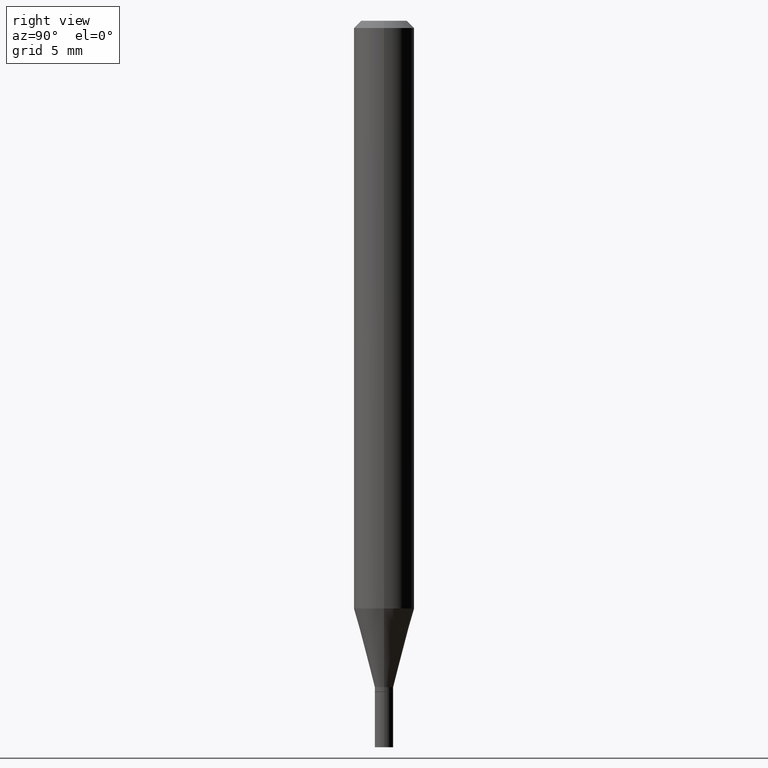
[diagram: clean part render]
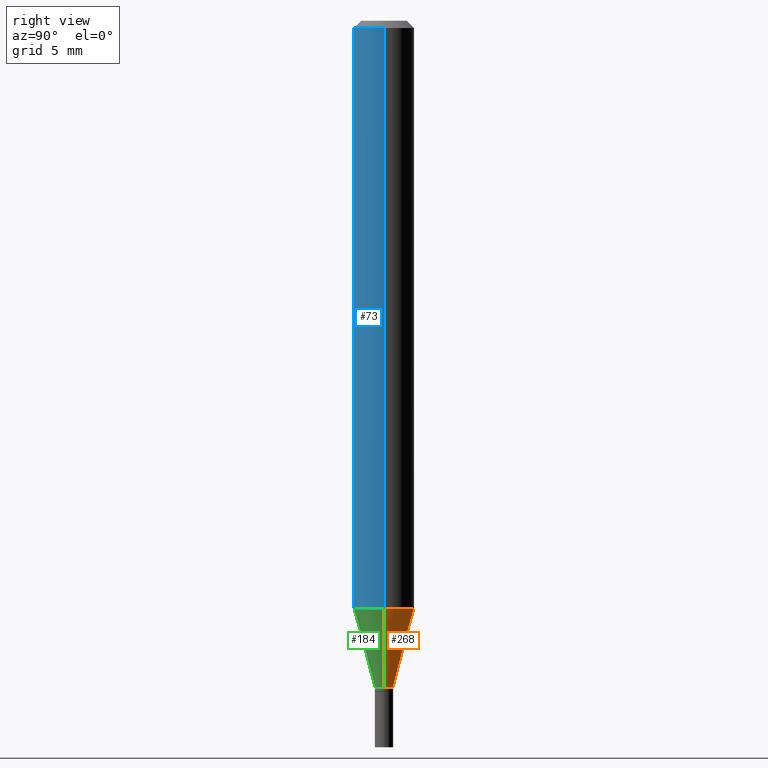
[diagram: same view with three faces highlighted in distinct colors, each labeled with its STEP entity id]
A machine part, right view with three faces highlighted in distinct colors.
Their STEP definitions:

[orange] entity #268 — the highlighted conical surface has half-angle 15 deg.
#3 = VECTOR ( 'NONE', #204, 39.37007874015748854 ) ;
#15 = EDGE_CURVE ( 'NONE', #52, #159, #207, .T. ) ;
#18 = CARTESIAN_POINT ( 'NONE',  ( 0.01900000000000019382, -4.936954613124209308E-15, -1.376000000000000112 ) ) ;
#30 = VERTEX_POINT ( 'NONE', #452 ) ;
#45 = DIRECTION ( 'NONE',  ( 1.000000000000000000, -6.982962677686262766E-15, 0.000000000000000000 ) ) ;
#52 = VERTEX_POINT ( 'NONE', #18 ) ;
#82 = DIRECTION ( 'NONE',  ( 1.000000000000000000, -6.982962677686261977E-15, 0.000000000000000000 ) ) ;
#90 = CARTESIAN_POINT ( 'NONE',  ( 0.01900000000000019382, -4.936954613124209308E-15, -1.376000000000000112 ) ) ;
#92 = ORIENTED_EDGE ( 'NONE', *, *, #192, .T. ) ;
#98 = VECTOR ( 'NONE', #168, 39.37007874015748854 ) ;
#123 = DIRECTION ( 'NONE',  ( -2.445468806185136597E-29, 3.491481338843145583E-15, 1.000000000000000000 ) ) ;
#137 = ORIENTED_EDGE ( 'NONE', *, *, #187, .T. ) ;
#159 = VERTEX_POINT ( 'NONE', #235 ) ;
#168 = DIRECTION ( 'NONE',  ( -0.2588190451025212391, 5.211531920934549464E-15, 0.9659258262890679791 ) ) ;
#172 = CIRCLE ( 'NONE', #335, 0.06250000000000000000 ) ;
#187 = EDGE_CURVE ( 'NONE', #244, #30, #451, .T. ) ;
#192 = EDGE_CURVE ( 'NONE', #52, #244, #358, .T. ) ;
#202 = CONICAL_SURFACE ( 'NONE', #275, 0.01900000000000019382, 0.2617993877991499629 ) ;
#204 = DIRECTION ( 'NONE',  ( 0.2588190451025212391, 1.565188264969622362E-15, 0.9659258262890679791 ) ) ;
#207 = LINE ( 'NONE', #90, #3 ) ;
#235 = CARTESIAN_POINT ( 'NONE',  ( 0.06250000000000000000, -4.673891709468070691E-15, -1.213655789870754953 ) ) ;
#241 = ORIENTED_EDGE ( 'NONE', *, *, #325, .F. ) ;
#244 = VERTEX_POINT ( 'NONE', #393 ) ;
#260 = DIRECTION ( 'NONE',  ( -2.445468806185136597E-29, 3.491481338843145583E-15, 1.000000000000000000 ) ) ;
#264 = CARTESIAN_POINT ( 'NONE',  ( 2.967957375574913989E-29, -4.237456542112679022E-15, -1.213655789870754953 ) ) ;
#265 = DIRECTION ( 'NONE',  ( -2.445468806185136597E-29, 3.491481338843145583E-15, 1.000000000000000000 ) ) ;
#268 = ADVANCED_FACE ( 'NONE', ( #334 ), #202, .T. ) ;
#275 = AXIS2_PLACEMENT_3D ( 'NONE', #278, #265, #82 ) ;
#278 = CARTESIAN_POINT ( 'NONE',  ( 3.364965077310747863E-29, -4.804278322248168726E-15, -1.376000000000000112 ) ) ;
#288 = DIRECTION ( 'NONE',  ( 1.000000000000000000, -6.982962677686261977E-15, 0.000000000000000000 ) ) ;
#291 = EDGE_LOOP ( 'NONE', ( #92, #137, #241, #380 ) ) ;
#318 = CARTESIAN_POINT ( 'NONE',  ( -0.01900000000000019382, -4.669275202453748782E-15, -1.376000000000000112 ) ) ;
#325 = EDGE_CURVE ( 'NONE', #159, #30, #172, .T. ) ;
#334 = FACE_OUTER_BOUND ( 'NONE', #291, .T. ) ;
#335 = AXIS2_PLACEMENT_3D ( 'NONE', #264, #260, #45 ) ;
#358 = CIRCLE ( 'NONE', #428, 0.01900000000000019382 ) ;
#380 = ORIENTED_EDGE ( 'NONE', *, *, #15, .F. ) ;
#393 = CARTESIAN_POINT ( 'NONE',  ( -0.01900000000000019382, -4.231321267358182988E-15, -1.376000000000000112 ) ) ;
#428 = AXIS2_PLACEMENT_3D ( 'NONE', #454, #123, #288 ) ;
#451 = LINE ( 'NONE', #318, #98 ) ;
#452 = CARTESIAN_POINT ( 'NONE',  ( -0.06250000000000000000, -3.793367332262617194E-15, -1.213655789870754953 ) ) ;
#454 = CARTESIAN_POINT ( 'NONE',  ( 3.364965077310747863E-29, -4.804278322248168726E-15, -1.376000000000000112 ) ) ;

[blue] entity #73 — the highlighted cylindrical surface (edge-blend (fillet) strip) has radius 1.5875 mm, axis along (-0, 0, 1).
#7 = CARTESIAN_POINT ( 'NONE',  ( 0.06250000000000000000, -4.364351673553916694E-16, 3.047610484872459871E-30 ) ) ;
#23 = CARTESIAN_POINT ( 'NONE',  ( 0.000000000000000000, 0.000000000000000000, 0.000000000000000000 ) ) ;
#30 = VERTEX_POINT ( 'NONE', #452 ) ;
#37 = VECTOR ( 'NONE', #401, 39.37007874015748143 ) ;
#51 = LINE ( 'NONE', #7, #37 ) ;
#57 = DIRECTION ( 'NONE',  ( -2.445468806185136597E-29, 3.491481338843145583E-15, 1.000000000000000000 ) ) ;
#61 = CARTESIAN_POINT ( 'NONE',  ( 0.06250000000000000000, -4.888073874380388472E-16, -0.01499999999999999944 ) ) ;
#64 = CYLINDRICAL_SURFACE ( 'NONE', #347, 0.06250000000000000000 ) ;
#73 = ADVANCED_FACE ( 'NONE', ( #243 ), #64, .T. ) ;
#97 = EDGE_CURVE ( 'NONE', #409, #130, #124, .T. ) ;
#109 = CARTESIAN_POINT ( 'NONE',  ( -0.06250000000000000000, 4.440892098500626162E-16, -3.074334431409316114E-30 ) ) ;
#124 = CIRCLE ( 'NONE', #151, 0.06250000000000000000 ) ;
#125 = VECTOR ( 'NONE', #229, 39.37007874015748143 ) ;
#130 = VERTEX_POINT ( 'NONE', #61 ) ;
#131 = EDGE_CURVE ( 'NONE', #30, #159, #294, .T. ) ;
#132 = DIRECTION ( 'NONE',  ( -2.445468806185136597E-29, 3.491481338843145583E-15, 1.000000000000000000 ) ) ;
#151 = AXIS2_PLACEMENT_3D ( 'NONE', #285, #132, #319 ) ;
#159 = VERTEX_POINT ( 'NONE', #235 ) ;
#200 = ORIENTED_EDGE ( 'NONE', *, *, #97, .F. ) ;
#211 = AXIS2_PLACEMENT_3D ( 'NONE', #341, #57, #342 ) ;
#229 = DIRECTION ( 'NONE',  ( -2.445468806185136877E-29, 3.491481338843145188E-15, 1.000000000000000000 ) ) ;
#235 = CARTESIAN_POINT ( 'NONE',  ( 0.06250000000000000000, -4.673891709468070691E-15, -1.213655789870754953 ) ) ;
#243 = FACE_OUTER_BOUND ( 'NONE', #376, .T. ) ;
#251 = EDGE_CURVE ( 'NONE', #159, #130, #51, .T. ) ;
#261 = CARTESIAN_POINT ( 'NONE',  ( -0.06250000000000000000, -1.700825171247600434E-15, -0.01499999999999999944 ) ) ;
#270 = LINE ( 'NONE', #109, #125 ) ;
#285 = CARTESIAN_POINT ( 'NONE',  ( 3.668203209277705088E-31, -5.237222008264718399E-17, -0.01499999999999999944 ) ) ;
#294 = CIRCLE ( 'NONE', #211, 0.06250000000000000000 ) ;
#319 = DIRECTION ( 'NONE',  ( 1.000000000000000000, -6.982962677686266711E-15, 0.000000000000000000 ) ) ;
#321 = ORIENTED_EDGE ( 'NONE', *, *, #375, .F. ) ;
#341 = CARTESIAN_POINT ( 'NONE',  ( 2.967957375574913989E-29, -4.237456542112679022E-15, -1.213655789870754953 ) ) ;
#342 = DIRECTION ( 'NONE',  ( 1.000000000000000000, -6.982962677686262766E-15, 0.000000000000000000 ) ) ;
#347 = AXIS2_PLACEMENT_3D ( 'NONE', #23, #384, #377 ) ;
#375 = EDGE_CURVE ( 'NONE', #30, #409, #270, .T. ) ;
#376 = EDGE_LOOP ( 'NONE', ( #321, #453, #426, #200 ) ) ;
#377 = DIRECTION ( 'NONE',  ( 1.000000000000000000, -6.982962677686266711E-15, 4.876176775795935793E-29 ) ) ;
#384 = DIRECTION ( 'NONE',  ( -2.445468806185136597E-29, 3.491481338843145583E-15, 1.000000000000000000 ) ) ;
#401 = DIRECTION ( 'NONE',  ( -2.445468806185136877E-29, 3.491481338843145188E-15, 1.000000000000000000 ) ) ;
#409 = VERTEX_POINT ( 'NONE', #261 ) ;
#426 = ORIENTED_EDGE ( 'NONE', *, *, #251, .T. ) ;
#452 = CARTESIAN_POINT ( 'NONE',  ( -0.06250000000000000000, -3.793367332262617194E-15, -1.213655789870754953 ) ) ;
#453 = ORIENTED_EDGE ( 'NONE', *, *, #131, .T. ) ;

[green] entity #184 — the highlighted conical surface has half-angle 15 deg.
#3 = VECTOR ( 'NONE', #204, 39.37007874015748854 ) ;
#15 = EDGE_CURVE ( 'NONE', #52, #159, #207, .T. ) ;
#18 = CARTESIAN_POINT ( 'NONE',  ( 0.01900000000000019382, -4.936954613124209308E-15, -1.376000000000000112 ) ) ;
#20 = ORIENTED_EDGE ( 'NONE', *, *, #131, .F. ) ;
#30 = VERTEX_POINT ( 'NONE', #452 ) ;
#52 = VERTEX_POINT ( 'NONE', #18 ) ;
#57 = DIRECTION ( 'NONE',  ( -2.445468806185136597E-29, 3.491481338843145583E-15, 1.000000000000000000 ) ) ;
#90 = CARTESIAN_POINT ( 'NONE',  ( 0.01900000000000019382, -4.936954613124209308E-15, -1.376000000000000112 ) ) ;
#98 = VECTOR ( 'NONE', #168, 39.37007874015748854 ) ;
#131 = EDGE_CURVE ( 'NONE', #30, #159, #294, .T. ) ;
#157 = ORIENTED_EDGE ( 'NONE', *, *, #187, .F. ) ;
#159 = VERTEX_POINT ( 'NONE', #235 ) ;
#165 = DIRECTION ( 'NONE',  ( 1.000000000000000000, -6.982962677686261977E-15, 0.000000000000000000 ) ) ;
#168 = DIRECTION ( 'NONE',  ( -0.2588190451025212391, 5.211531920934549464E-15, 0.9659258262890679791 ) ) ;
#184 = ADVANCED_FACE ( 'NONE', ( #381 ), #185, .T. ) ;
#185 = CONICAL_SURFACE ( 'NONE', #313, 0.01900000000000019382, 0.2617993877991499629 ) ;
#187 = EDGE_CURVE ( 'NONE', #244, #30, #451, .T. ) ;
#204 = DIRECTION ( 'NONE',  ( 0.2588190451025212391, 1.565188264969622362E-15, 0.9659258262890679791 ) ) ;
#207 = LINE ( 'NONE', #90, #3 ) ;
#208 = CARTESIAN_POINT ( 'NONE',  ( 3.364965077310747863E-29, -4.804278322248168726E-15, -1.376000000000000112 ) ) ;
#211 = AXIS2_PLACEMENT_3D ( 'NONE', #341, #57, #342 ) ;
#219 = EDGE_CURVE ( 'NONE', #244, #52, #262, .T. ) ;
#235 = CARTESIAN_POINT ( 'NONE',  ( 0.06250000000000000000, -4.673891709468070691E-15, -1.213655789870754953 ) ) ;
#239 = AXIS2_PLACEMENT_3D ( 'NONE', #250, #390, #434 ) ;
#244 = VERTEX_POINT ( 'NONE', #393 ) ;
#250 = CARTESIAN_POINT ( 'NONE',  ( 3.364965077310747863E-29, -4.804278322248168726E-15, -1.376000000000000112 ) ) ;
#262 = CIRCLE ( 'NONE', #239, 0.01900000000000019382 ) ;
#267 = ORIENTED_EDGE ( 'NONE', *, *, #15, .T. ) ;
#286 = ORIENTED_EDGE ( 'NONE', *, *, #219, .T. ) ;
#294 = CIRCLE ( 'NONE', #211, 0.06250000000000000000 ) ;
#313 = AXIS2_PLACEMENT_3D ( 'NONE', #208, #373, #165 ) ;
#318 = CARTESIAN_POINT ( 'NONE',  ( -0.01900000000000019382, -4.669275202453748782E-15, -1.376000000000000112 ) ) ;
#341 = CARTESIAN_POINT ( 'NONE',  ( 2.967957375574913989E-29, -4.237456542112679022E-15, -1.213655789870754953 ) ) ;
#342 = DIRECTION ( 'NONE',  ( 1.000000000000000000, -6.982962677686262766E-15, 0.000000000000000000 ) ) ;
#368 = EDGE_LOOP ( 'NONE', ( #157, #286, #267, #20 ) ) ;
#373 = DIRECTION ( 'NONE',  ( -2.445468806185136597E-29, 3.491481338843145583E-15, 1.000000000000000000 ) ) ;
#381 = FACE_OUTER_BOUND ( 'NONE', #368, .T. ) ;
#390 = DIRECTION ( 'NONE',  ( -2.445468806185136597E-29, 3.491481338843145583E-15, 1.000000000000000000 ) ) ;
#393 = CARTESIAN_POINT ( 'NONE',  ( -0.01900000000000019382, -4.231321267358182988E-15, -1.376000000000000112 ) ) ;
#434 = DIRECTION ( 'NONE',  ( 1.000000000000000000, -6.982962677686261977E-15, 0.000000000000000000 ) ) ;
#451 = LINE ( 'NONE', #318, #98 ) ;
#452 = CARTESIAN_POINT ( 'NONE',  ( -0.06250000000000000000, -3.793367332262617194E-15, -1.213655789870754953 ) ) ;